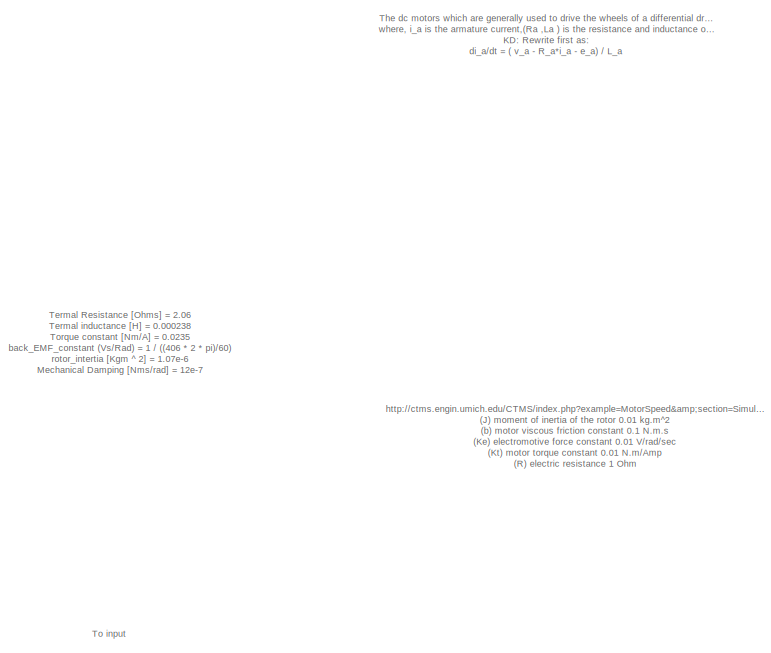
[diagram: root canvas - part 1/3, top center region]
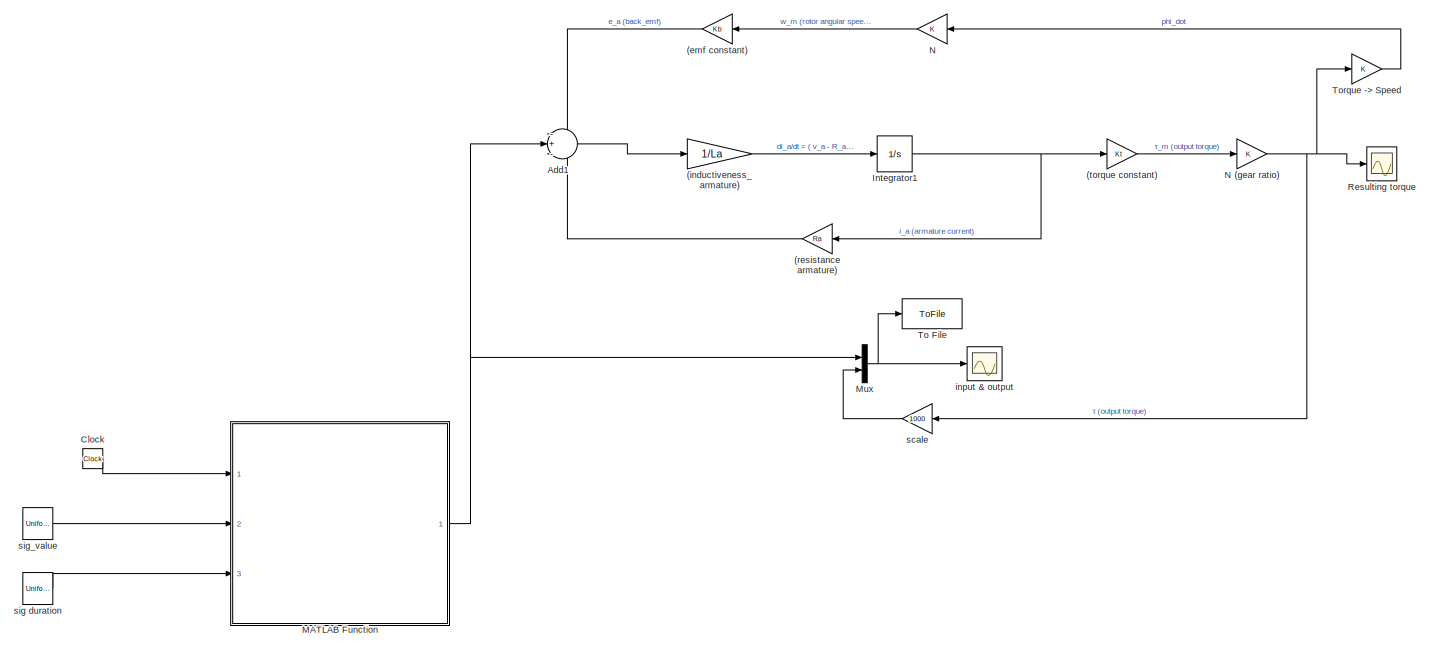
[diagram: root canvas - part 2/3, full width, middle band]
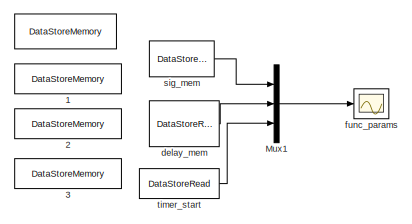
[diagram: root canvas - part 3/3, bottom left region]
MODEL slx_152d8bf59a3f
KIND model
CONFIG AbsTol = auto
CONFIG EnableMultiTasking = off
CONFIG FixedStep = 0.01
CONFIG MaxStep = auto
CONFIG MinStep = auto
CONFIG RelTol = 1e-3
CONFIG SampleTimeConstraint = Unconstrained
CONFIG Solver = ode3
CONFIG SolverName = ode3
CONFIG StartTime = 0.0
CONFIG StopTime = 10000
WORKSPACE source: MAT-file member
WORKSPACE Kb = 0.01
BLOCK [DataStoreMemory]  
  DataStoreName = is_inited
  InitialValue = false
  OutDataTypeStr = boolean
  ReadBeforeWriteMsg = warning
  ShowAdditionalParam = off
  SignalType = real
  WriteAfterReadMsg = warning
  WriteAfterWriteMsg = warning
BLOCK [Gain]  (inductiveness_armature)
  Gain = 1/La
  OutDataTypeStr = Inherit: Inherit via internal rule
  ParamDataTypeStr = Inherit: Inherit via internal rule
  SaturateOnIntegerOverflow = off
BLOCK [DataStoreMemory]  1
  DataStoreName = sig_mem
  InitialValue = 3
  OutDataTypeStr = double
  ReadBeforeWriteMsg = warning
  ShowAdditionalParam = off
  SignalType = real
  WriteAfterReadMsg = warning
  WriteAfterWriteMsg = warning
BLOCK [DataStoreMemory]  2
  DataStoreName = delay_mem
  OutDataTypeStr = double
  ReadBeforeWriteMsg = warning
  ShowAdditionalParam = off
  SignalType = real
  WriteAfterReadMsg = warning
  WriteAfterWriteMsg = warning
BLOCK [DataStoreMemory]  3
  DataStoreName = timer_start
  OutDataTypeStr = double
  ReadBeforeWriteMsg = warning
  ShowAdditionalParam = off
  SignalType = real
  WriteAfterReadMsg = warning
  WriteAfterWriteMsg = warning
BLOCK [Gain] (emf constant)
  Gain = Kb
  OutDataTypeStr = Inherit: Inherit via internal rule
  ParamDataTypeStr = Inherit: Inherit via internal rule
  SaturateOnIntegerOverflow = off
BLOCK [Gain] (resistance armature)
  Gain = Ra
  OutDataTypeStr = Inherit: Inherit via internal rule
  ParamDataTypeStr = Inherit: Inherit via internal rule
  SaturateOnIntegerOverflow = off
BLOCK [Gain] (torque constant)
  Gain = Kt
  OutDataTypeStr = Inherit: Inherit via internal rule
  ParamDataTypeStr = Inherit: Inherit via internal rule
  SaturateOnIntegerOverflow = off
BLOCK [Sum] Add1
  IconShape = round
  InputSameDT = off
  Inputs = -+-
  OutDataTypeStr = Inherit: Inherit via internal rule
  Ports = [3, 1]
  SaturateOnIntegerOverflow = off
BLOCK [Clock] Clock
BLOCK [Integrator] Integrator1
  Ports = [1, 1]
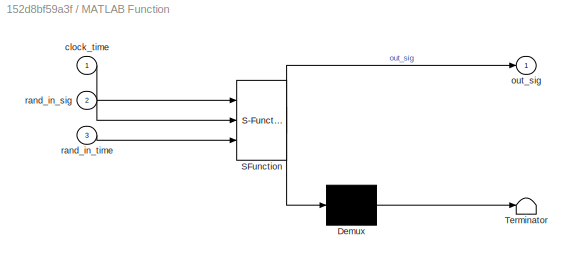
BLOCK [SubSystem] MATLAB Function
  ErrorFcn = Stateflow.Translate.translate
  PermitHierarchicalResolution = ExplicitOnly
  Ports = [3, 1]
  RequestExecContextInheritance = off
  SFBlockType = MATLAB Function
  TreatAsAtomicUnit = on
BLOCK [Demux] MATLAB Function/ Demux 
  Outputs = 1
  Ports = [1, 1]
BLOCK [S-Function] MATLAB Function/ SFunction 
  EnableBusSupport = on
  FunctionName = sf_sfun
  PortCounts = [3 2]
  Ports = [3, 2]
  SFcnIsStateOwnerBlock = off
  SFunctionDeploymentMode = off
  Tag = Stateflow S-Function dc_engine_random_sig_random_period 2
BLOCK [Terminator] MATLAB Function/ Terminator 
BLOCK [Inport] MATLAB Function/clock_time
  IconDisplay = Port number
BLOCK [Outport] MATLAB Function/out_sig
  IconDisplay = Port number
BLOCK [Inport] MATLAB Function/rand_in_sig
  IconDisplay = Port number
  Port = 2
BLOCK [Inport] MATLAB Function/rand_in_time
  IconDisplay = Port number
  Port = 3
BLOCK [Mux] Mux
  DisplayOption = bar
  Inputs = 2
  Ports = [2, 1]
BLOCK [Mux] Mux1
  DisplayOption = bar
  Inputs = 3
  Ports = [3, 1]
BLOCK [Gain] N
  OutDataTypeStr = Inherit: Inherit via internal rule
  ParamDataTypeStr = Inherit: Inherit via internal rule
  SaturateOnIntegerOverflow = off
BLOCK [Gain] N (gear ratio)
  OutDataTypeStr = Inherit: Inherit via internal rule
  ParamDataTypeStr = Inherit: Inherit via internal rule
  SaturateOnIntegerOverflow = off
BLOCK [Scope] Resulting torque
  Floating = off
  NumInputPorts = 1
  Ports = [1]
  ScopeSpecificationString = Simulink.scopes.TimeScopeBlockCfg('CurrentConfiguration', extmgr.ConfigurationSet(extmgr.Configuration('Core','General UI',true),extmgr.Configuration('Core','Source UI',true),extmgr.Configuration('Sources','WiredSimulink',true),extmgr.Configuration('Visuals','Time Domain',true,'SerializedDisplays',{struct('MinYLimReal','-0.00186','MaxYLimReal','0.01677','YLabelReal','','MinYLimMag','0.00000','MaxY...<+1366ch>
BLOCK [ToFile] To File
  Filename = res.mat
  Ports = [1]
  SampleTime = 0.01
BLOCK [Gain] Torque -> Speed 
  OutDataTypeStr = Inherit: Inherit via internal rule
  ParamDataTypeStr = Inherit: Inherit via internal rule
  SaturateOnIntegerOverflow = off
BLOCK [DataStoreRead] delay_mem
  DataStoreName = delay_mem
  Ports = [0, 1]
BLOCK [Scope] func_params
  Floating = off
  NumInputPorts = 1
  Ports = [1]
  ScopeSpecificationString = Simulink.scopes.TimeScopeBlockCfg('CurrentConfiguration', extmgr.ConfigurationSet(extmgr.Configuration('Core','General UI',true),extmgr.Configuration('Core','Source UI',true),extmgr.Configuration('Sources','WiredSimulink',true,'DataLoggingVariableName','ScopeData1'),extmgr.Configuration('Visuals','Time Domain',true,'SerializedDisplays',{struct('MinYLimReal','-12.11125','MaxYLimReal','109.00125','Y...<+1500ch>
BLOCK [Scope] input & output
  Floating = off
  NumInputPorts = 1
  Ports = [1]
  ScopeSpecificationString = Simulink.scopes.TimeScopeBlockCfg('CurrentConfiguration', extmgr.ConfigurationSet(extmgr.Configuration('Core','General UI',true),extmgr.Configuration('Core','Source UI',true),extmgr.Configuration('Sources','WiredSimulink',true,'DataLoggingVariableName','ScopeData1'),extmgr.Configuration('Visuals','Time Domain',true,'SerializedDisplays',{struct('MinYLimReal','-1.875','MaxYLimReal','16.875','YLabelR...<+1496ch>
BLOCK [Gain] scale
  Gain = 1000
  OutDataTypeStr = Inherit: Inherit via internal rule
  ParamDataTypeStr = Inherit: Inherit via internal rule
  SaturateOnIntegerOverflow = off
BLOCK [UniformRandomNumber] sig duration
  Maximum = 12
  Minimum = 4
  SampleTime = 4
  Seed = 42
BLOCK [DataStoreRead] sig_mem 
  DataStoreName = sig_mem
  Ports = [0, 1]
BLOCK [UniformRandomNumber] sig_value
  Maximum = 15
  Minimum = 8
  SampleTime = 5
  Seed = 43
BLOCK [DataStoreRead] timer_start
  DataStoreName = timer_start
  Ports = [0, 1]
ANNOTATION (root): Termal Resistance [Ohms] = 2.06 Termal inductance [H] = 0.000238 Torque constant [Nm/A] = 0.0235 back_EMF_constant (Vs/Rad) = 1 / ((406 * 2 * pi)/60) rotor_intertia [Kgm ^ 2] = 1.07e-6 Mechanical Damping [Nms/rad] = 12e-7 Thermal Resistance [K/W] = 14 Thermal time constant [s] = 910 Ambient temperature [C] = 22
ANNOTATION (root): The dc motors which are generally used to drive the wheels of a differential drive mobile robot system are considered to be the servo actuators. In an armature-controlled dc motor which is the case for our DDMR system, the armature voltage v_a is used as the control input while keeping the conditions in the field circuit constant. In particular, for a permanent-magnet dc motor, we have the followi...<+433ch>
ANNOTATION (root): http://ctms.engin.umich.edu/CTMS/index.php?example=MotorSpeed&section=SimulinkModeling (J) moment of inertia of the rotor 0.01 kg.m^2 (b) motor viscous friction constant 0.1 N.m.s (Ke) electromotive force constant 0.01 V/rad/sec (Kt) motor torque constant 0.01 N.m/Amp (R) electric resistance 1 Ohm (L) electric inductance 0.5 H
ANNOTATION (root): To input
LINE  (inductiveness_armature):1 -> Integrator1:1
LINE (emf constant):1 -> Add1:1
LINE (resistance armature):1 -> Add1:3
LINE (torque constant):1 -> N (gear ratio):1
LINE Add1:1 ->  (inductiveness_armature):1
LINE Clock:1 -> MATLAB Function:1
NET Integrator1:1 -> (resistance armature):1, (torque constant):1
NET MATLAB Function:1 -> Add1:2, Mux:1
LINE Mux1:1 -> func_params:1
NET Mux:1 -> To File:1, input & output:1
NET N (gear ratio):1 -> Resulting torque:1, Torque -> Speed :1, scale:1
LINE N:1 -> (emf constant):1
LINE Torque -> Speed :1 -> N:1
LINE delay_mem:1 -> Mux1:2
LINE scale:1 -> Mux:2
LINE sig duration:1 -> MATLAB Function:3
LINE sig_mem :1 -> Mux1:1
LINE sig_value:1 -> MATLAB Function:2
LINE timer_start:1 -> Mux1:3
note: NET lines group one-source signal fan-out (src -> all destinations, sorted); 1:1 wires keep LINE
CHART MATLAB Function states=1 transitions=1
  STATE_LABEL 'eML_blk_kernel()'
  STATE_LABEL 'SCRIPT:\nfunction out_sig  = randomize_time_period(clock_time, rand_in_sig, rand_in_time)\nglobal sig_mem;\nglobal delay_mem;\nglobal is_inited;\nglobal timer_start;\nif (~is_inited)\n    is_inited = true;\n    timer_start = clock_time;\n    sig_mem = rand_in_sig;\n    delay_mem = rand_in_time;\nend\n\nif (clock_time - timer_start ) > delay_mem\n    timer_start = clock_time;\n    sig_mem = rand_in_sig;\n    delay...<+45ch>'
